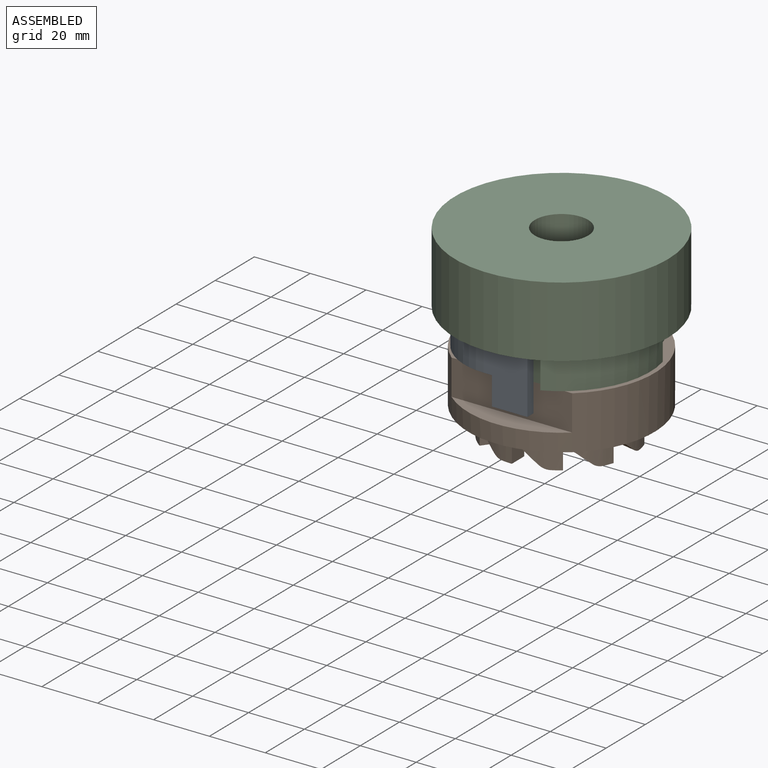
[diagram: assembled view]
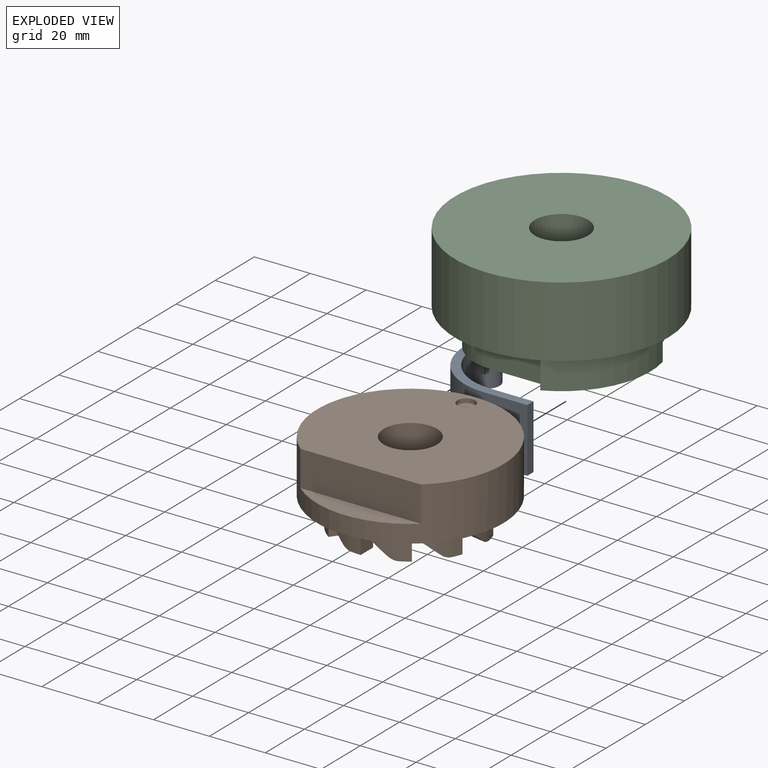
[diagram: exploded view]
GUIDED TOUR — MATED ASSEMBLY (Onshape document 4db34a7f5a0e4e9b8964d2f3, AutoMate assembly 4db34a7f5a0e4e9b8964d2f3_7004a7bdf6988223f767ba07_ab52f2e345b327b0b4ff7aee_default)

This assembly has 3 components, labeled P0..P2 below (a component is one placed occurrence of a part; the same part can appear more than once), held together by 3 mates. A mate is a constraint between two components; its type names the relative motion it leaves free:
  CYLINDRICAL — leaves both rotation about and translation along the listed axis free,
  PARALLEL — keeps the two listed directions parallel.
Axis/direction vectors are unit vectors and 'through' points are millimeter coordinates, both in the assembly's world frame.

MATES
  1. CYLINDRICAL "Cylindrical 1": P0 <-> P2, axis (0.000, 0.000, 1.000) through (-26.92, 0.00, 12.70) mm
  2. PARALLEL "Parallel 1": P1 <-> P2, direction (0.000, -1.000, 0.000) through (21.59, -25.40, 0.00) mm
  3. CYLINDRICAL "Cylindrical 2": P1 <-> P2, axis (0.000, 0.000, 1.000) through (0.00, 0.00, 0.00) mm

ASSEMBLY ORDER
  1. P2 — the base component [order heuristic]
  2. P0 — core [order heuristic]
  3. P1 [order verified]
Order-tag legend:
  [order verified] — this step's position reverses a verified removal order: the component was checked to insert without passing through the ones already placed.
  [order heuristic] — the first 2 components form the assembly's core: parts whose collision-free extraction could not be verified, listed in mate-graph order.

Of the 3 components, 1 carries the full construction recipe — the FeatureScript program that regenerates the part's solid from scratch; the rest are supplied as boundary geometry only.
Each toured component is shown spotlighted twice — in the assembled view, then in the exploded view, where a leader line traces a displaced component back to its assembled socket (saturated green if recipe-attached, orange if geometry-only; every other component desaturated gray) — followed by its recipe or geometry summary and the mates that hold it.
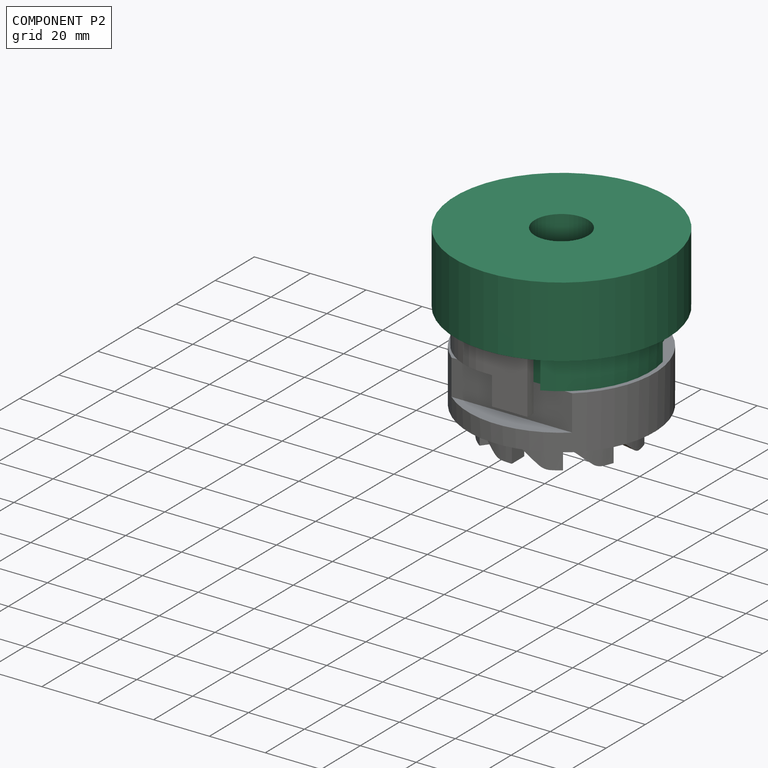
[diagram: component P2 — assembled]
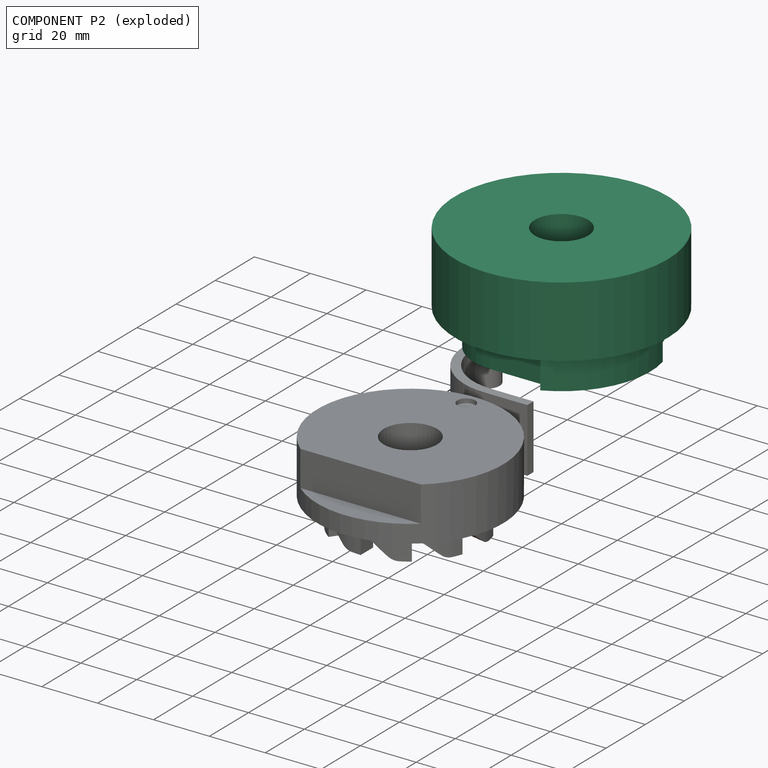
[diagram: component P2 — exploded]
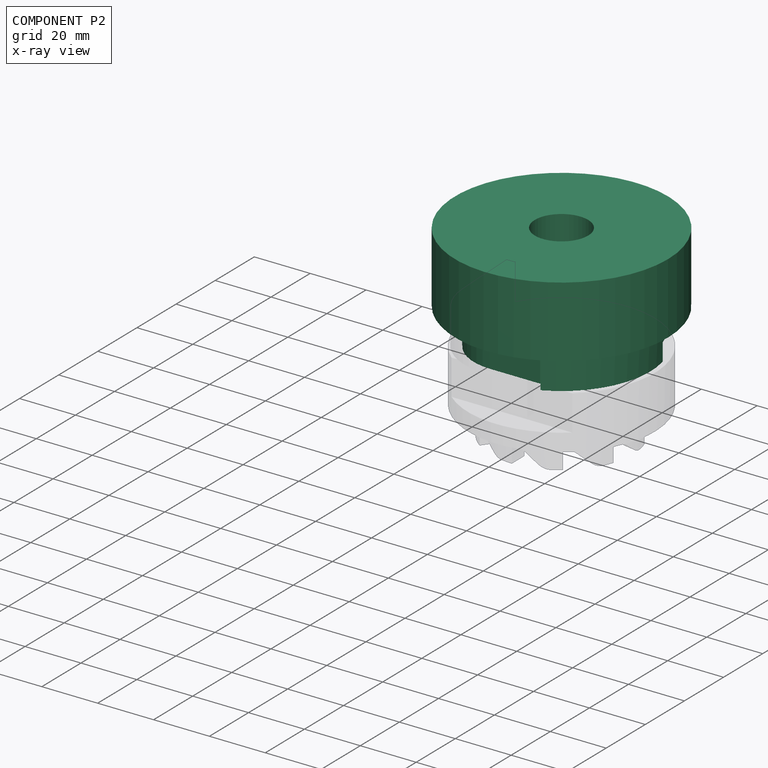
[diagram: component P2 — x-ray view]
COMPONENT P2 — recipe-attached (CADFS 00836405, mesh-verified: the recipe's output STEP matches this component's geometry to below the mesh-comparison resolution (tessellation chordal tolerance ~0.171 mm)).
Held by: CYLINDRICAL mate "Cylindrical 1" to P0; PARALLEL mate "Parallel 1" to P1; CYLINDRICAL mate "Cylindrical 2" to P1.
Construction recipe (FeatureScript — the CAD program that rebuilds this solid; sketch coordinates are in the units given by the * unit suffixes, e.g. mm):

FeatureScript 1511;
import(path : "onshape/std/geometry.fs", version : "1511.0");
import(path : "onshape/std/common.fs", version : "1511.0");
const mm = millimeter;
const VERTEX = EntityType.VERTEX;
const EDGE = EntityType.EDGE;
const FACE = EntityType.FACE;
const BODY = EntityType.BODY;
function v(x, y){return vector(x, y);}
function OD(order){return orderDisambiguation(order);}
function OSD(set){return originalSetDisambiguation(set);}
function TD(topology){return topologyDisambiguation(topology);}
function TDD(query){return trueDependencyDisambiguation(query);}
function sQuery(a, b, c) {return sketchEntityQuery(a, b, c);}

annotation { "Feature Type Name" : "Feature", "Feature Type Description" : "" }
export const myFeature = defineFeature(function(context is Context, id is Id, definition is map)
    precondition{}
    {
        {
            var Q0;
            Q0=qCreatedBy(makeId("Front.planeOp"),FACE);
            var sketch = newSketch(context, id + "F0", { "sketchPlane" : qUnion([Q0])});
            skLineSegment(sketch, "E0", {"start": v(31.75, 0) * mm, "end": v(31.75, 12.7) * mm});
            skLineSegment(sketch, "E1", {"start": v(31.75, 12.7) * mm, "end": v(38.1, 12.7) * mm});
            skLineSegment(sketch, "E2", {"start": v(38.1, 12.7) * mm, "end": v(38.1, 38.1) * mm});
            skLineSegment(sketch, "E3", {"start": v(38.1, 38.1) * mm, "end": v(0, 38.1) * mm});
            skLineSegment(sketch, "E4", {"start": v(0, 38.1) * mm, "end": v(0, 0) * mm});
            skLineSegment(sketch, "E5", {"start": v(0, 0) * mm, "end": v(31.75, 0) * mm});
            skSolve(sketch);
        }
        {
            var Q0;
            Q0=makeQuery(id+"F0.imprint","IMPRINT",FACE,{"disambiguationData":[TD([[makeQuery(id+"F0.imprint","IMPRINT",EDGE,{"derivedFrom":sQuery(id+"F0.wireOp",EDGE,"E0")}),1.0]])]});
            var Q1;
            Q1=sQuery(id+"F0.wireOp",EDGE,"E4");
            revolve(context, id + "F1", {"surfaceOperationType" : NewSurfaceOperationType.NEW, "entities" : qUnion([Q0]), "axis" : qUnion([Q1]), "revolveType" : RevolveType.FULL});
        }
        {
            var Q0;
            Q0=makeQuery(id+"F1.opRevolve","SWEPT_FACE",FACE,{"disambiguationData":[OSD([sQuery(id+"F0.wireOp",EDGE,"E5")])]});
            var sketch = newSketch(context, id + "F2", { "sketchPlane" : qUnion([Q0])});
            skLineSegment(sketch, "E6", {"start": v(12.76, 29.07) * mm, "end": v(11.48, 25.4) * mm});
            skLineSegment(sketch, "E7", {"start": v(11.48, 25.4) * mm, "end": v(-7.87, 25.4) * mm});
            skArc(sketch, "E8", {"start": v(-7.87, 25.4) * mm, "mid": v(-21.34, 19.82) * mm, "end": v(-26.92, 6.35) * mm});
            skLineSegment(sketch, "E9", {"start": v(-26.92, 6.35) * mm, "end": v(-7.87, 6.35) * mm, "construction": true});
            skLineSegment(sketch, "E10", {"start": v(-48.72, -19.05) * mm, "end": v(-32.54, 29.23) * mm});
            skLineSegment(sketch, "E11", {"start": v(-32.54, 29.23) * mm, "end": v(20.22, 33.7) * mm});
            skLineSegment(sketch, "E12", {"start": v(20.22, 33.7) * mm, "end": v(12.76, 29.07) * mm});
            skLineSegment(sketch, "E13", {"start": v(-26.92, 6.35) * mm, "end": v(-26.92, 5.08) * mm});
            skLineSegment(sketch, "E14", {"start": v(-26.92, -19.05) * mm, "end": v(-48.72, -19.05) * mm});
            skArc(sketch, "E15", {"start": v(-26.92, -5.08) * mm, "mid": v(-21.84, 0) * mm, "end": v(-26.92, 5.08) * mm});
            skLineSegment(sketch, "E16.trimOffspring", {"start": v(-26.92, -5.08) * mm, "end": v(-26.92, -19.05) * mm});
            skSolve(sketch);
        }
        {
            var Q0;
            Q0 = qSketchRegion(id + "F2", true);
            extrude(context, id + "F3", {"entities" : qUnion([Q0]), "operationType" : NewBodyOperationType.REMOVE, "oppositeDirection" : true, "depth" : 12.7 * mm, "offsetDistance" : 25.4 * mm});
        }
        {
            var Q0;
            Q0=makeQuery(id+"F1.opRevolve","SWEPT_FACE",FACE,{"disambiguationData":[OSD([sQuery(id+"F0.wireOp",EDGE,"E5")])]});
            var sketch = newSketch(context, id + "F4", { "sketchPlane" : qUnion([Q0])});
            skArc(sketch, "E17", {"start": v(-8.69, -23.87) * mm, "mid": v(10.73, -23.02) * mm, "end": v(23.87, -8.69) * mm});
            skLineSegment(sketch, "E18", {"start": v(-8.69, -23.87) * mm, "end": v(0, 0) * mm, "construction": true});
            skLineSegment(sketch, "E19", {"start": v(0, 0) * mm, "end": v(23.87, -8.69) * mm, "construction": true});
            skArc(sketch, "E20", {"start": v(23.87, -8.69) * mm, "mid": v(25.5, -6.9) * mm, "end": v(27.94, -6.79) * mm});
            skArc(sketch, "E21", {"start": v(-8.69, -23.87) * mm, "mid": v(-11.12, -23.97) * mm, "end": v(-12.76, -25.77) * mm});
            skLineSegment(sketch, "E22", {"start": v(27.94, -6.79) * mm, "end": v(61.93, -19.16) * mm});
            skLineSegment(sketch, "E23", {"start": v(61.93, -19.16) * mm, "end": v(-28.88, -70.06) * mm});
            skLineSegment(sketch, "E24", {"start": v(-28.88, -70.06) * mm, "end": v(-12.76, -25.77) * mm});
            skSolve(sketch);
        }
        {
            var Q0;
            Q0 = qSketchRegion(id + "F4", true);
            extrude(context, id + "F5", {"entities" : qUnion([Q0]), "operationType" : NewBodyOperationType.REMOVE, "oppositeDirection" : true, "depth" : 6.35 * mm, "offsetDistance" : 25.4 * mm});
        }
        {
            var Q0;
            Q0=makeQuery(id+"F1.opRevolve","SWEPT_FACE",FACE,{"disambiguationData":[OSD([sQuery(id+"F0.wireOp",EDGE,"E5")])]});
            var sketch = newSketch(context, id + "F6", { "sketchPlane" : qUnion([Q0])});
            skPoint(sketch, "E25", {"position": v(0, 0) * mm});
            skSolve(sketch);
        }
        {
            var Q0;
            Q0=sQuery(id+"F6.wireOp",VERTEX,"E25");
            var Q1;
            Q1=makeQuery(id+"F1.opRevolve","SWEPT_BODY",BODY,{"disambiguationData":[OSD([sQuery(id+"F0.wireOp",EDGE,"E0"),sQuery(id+"F0.wireOp",EDGE,"E1"),sQuery(id+"F0.wireOp",EDGE,"E2"),sQuery(id+"F0.wireOp",EDGE,"E3"),sQuery(id+"F0.wireOp",EDGE,"E4"),sQuery(id+"F0.wireOp",EDGE,"E5")])]});
            hole(context, id + "F7", {"style" : HoleStyle.SIMPLE, "endStyle" : HoleEndStyle.THROUGH, "holeDiameter" : 19.05 * mm, "majorDiameter" : 6.35 * mm, "isTappedThrough" : true, "tappedDepth" : 50.8 * mm, "tapClearance" : 3, "locations" : qUnion([Q0]), "scope" : qUnion([Q1])});
        }
        {
            var Q0;
            Q0=makeQuery(id+"F3.boolean.opBoolean","MERGE",FACE,{"derivedFrom":[makeQuery(id+"F1.opRevolve","SWEPT_FACE",FACE,{"disambiguationData":[OSD([sQuery(id+"F0.wireOp",EDGE,"E1")])]}),makeQuery(id+"F3.opExtrude","CAP_FACE",FACE,{"disambiguationData":[OSD([sQuery(id+"F2.wireOp",EDGE,"E6"),sQuery(id+"F2.wireOp",EDGE,"E7"),sQuery(id+"F2.wireOp",EDGE,"E8"),sQuery(id+"F2.wireOp",EDGE,"E10"),sQuery(id+"F2.wireOp",EDGE,"E11"),sQuery(id+"F2.wireOp",EDGE,"E12"),sQuery(id+"F2.wireOp",EDGE,"E13"),sQuery(id+"F2.wireOp",EDGE,"E14"),sQuery(id+"F2.wireOp",EDGE,"E15"),sQuery(id+"F2.wireOp",EDGE,"E16.trimOffspring")])],"isStart":false})]});
            var Q1;
            Q1=makeQuery(id+"F3.boolean.opBoolean","MERGE",FACE,{"derivedFrom":[makeQuery(id+"F1.opRevolve","SWEPT_FACE",FACE,{"disambiguationData":[OSD([sQuery(id+"F0.wireOp",EDGE,"E1")])]}),makeQuery(id+"F3.opExtrude","CAP_FACE",FACE,{"disambiguationData":[OSD([sQuery(id+"F2.wireOp",EDGE,"E6"),sQuery(id+"F2.wireOp",EDGE,"E7"),sQuery(id+"F2.wireOp",EDGE,"E8"),sQuery(id+"F2.wireOp",EDGE,"E10"),sQuery(id+"F2.wireOp",EDGE,"E11"),sQuery(id+"F2.wireOp",EDGE,"E12"),sQuery(id+"F2.wireOp",EDGE,"E13"),sQuery(id+"F2.wireOp",EDGE,"E14"),sQuery(id+"F2.wireOp",EDGE,"E15"),sQuery(id+"F2.wireOp",EDGE,"E16.trimOffspring")])],"isStart":false})]});
            var sketch = newSketch(context, id + "F8", { "sketchPlane" : qUnion([Q0, Q1])});
            skCircle(sketch, "E26", {"center": v(-26.92, 0) * mm, "radius": 1.59 * mm});
            skSolve(sketch);
        }
        {
            var Q0;
            Q0 = qSketchRegion(id + "F8", true);
            extrude(context, id + "F9", {"entities" : qUnion([Q0]), "operationType" : NewBodyOperationType.REMOVE, "oppositeDirection" : true, "depth" : 3.17 * mm, "offsetDistance" : 25.4 * mm});
        }
    });
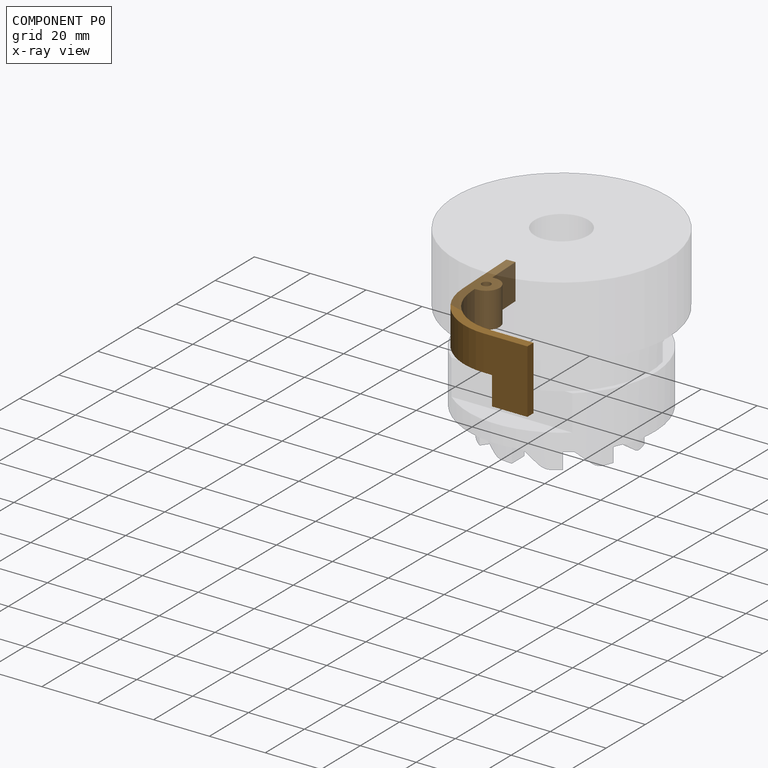
[diagram: component P0 — x-ray view]
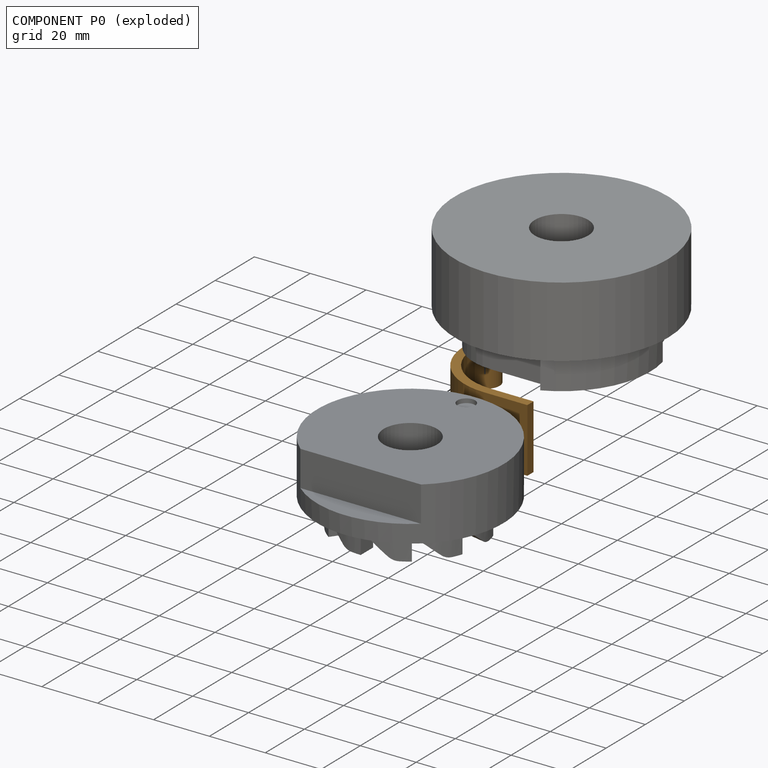
[diagram: component P0 — exploded]
COMPONENT P0 — geometry summary (no construction recipe available for this part):
  bounding box: 46.0 x 39.6 x 22.9 mm
  B-rep topology: 1 solid, 17 faces, 90 edges
  volume: 3788 mm^3 (9% of its bounding box)
Held by: CYLINDRICAL mate "Cylindrical 1" to P2.
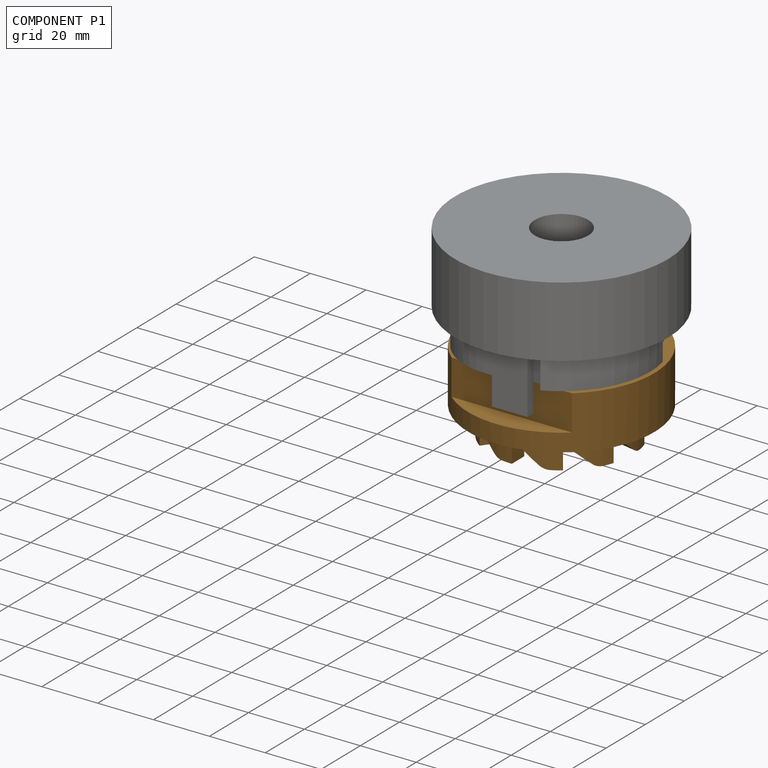
[diagram: component P1 — assembled]
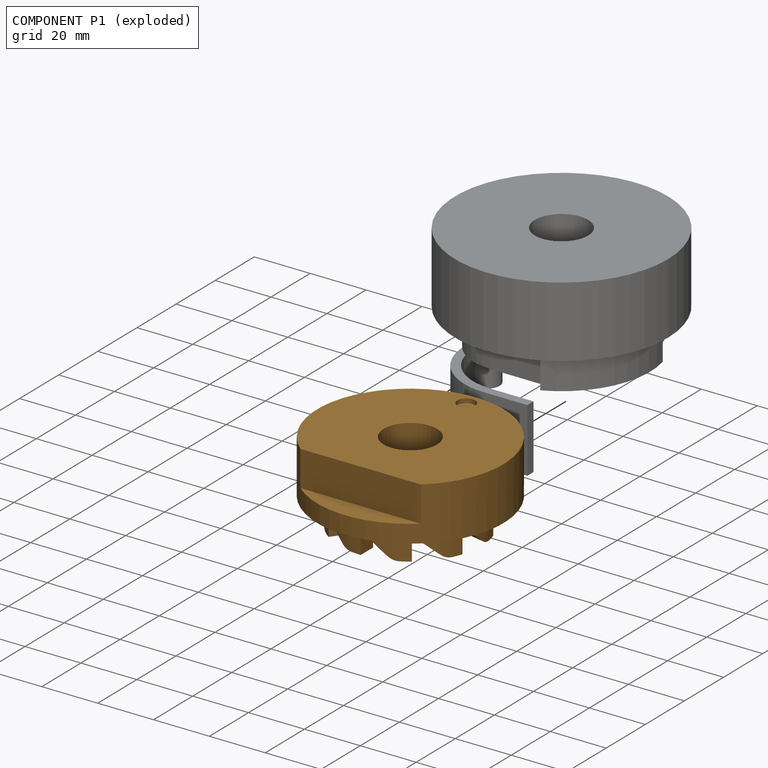
[diagram: component P1 — exploded]
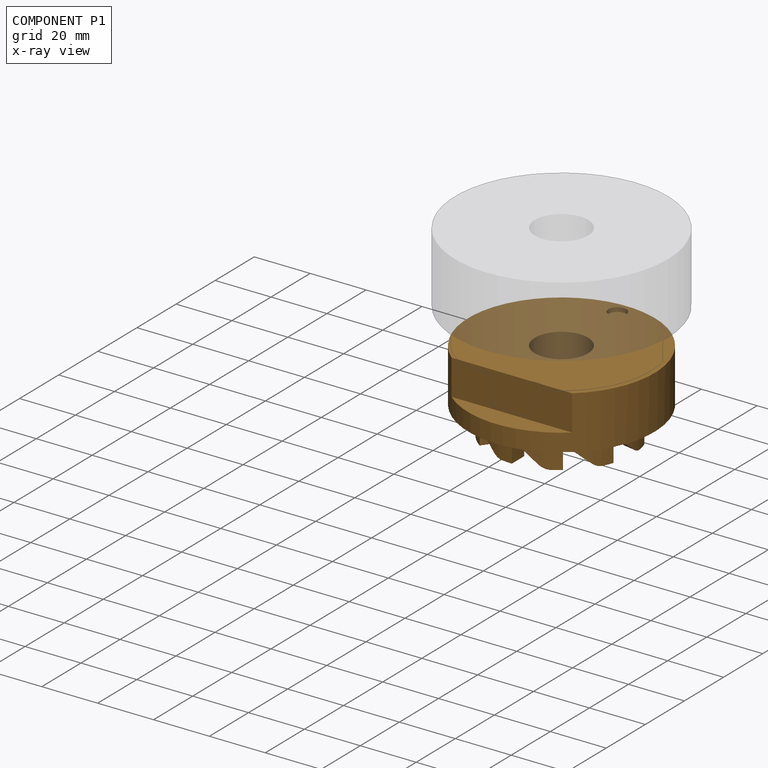
[diagram: component P1 — x-ray view]
COMPONENT P1 — geometry summary (no construction recipe available for this part):
  bounding box: 66.7 x 66.7 x 28.6 mm
  B-rep topology: 1 solid, 71 faces, 402 edges
  volume: 64012 mm^3 (50% of its bounding box)
Held by: PARALLEL mate "Parallel 1" to P2; CYLINDRICAL mate "Cylindrical 2" to P2.
PROVENANCE & LICENSES
Assembly (occurrences, transforms, mates, per-part STEP geometry): AutoMate dataset, Zenodo record 7776208, CC0.
Construction recipes: CADFS (HuggingFace VladPyatov/CADFS, CC-BY-4.0, layered over the ABC dataset), FeatureScript reconstruction programs keyed by ABC model id.
Join: ABC meta listings map ABC model id -> Onshape documentId; within a shared document, parts are matched by geometric signature (bounding-box dims + volume at 0.1% relative tolerance, exact B-rep face/solid counts).
Verification: 1 of this assembly's 3 components carries a recipe attachment, and every attachment is mesh-verified: the CADFS STEP and the AutoMate member STEP were compared as meshes in their shared local frame (symmetric sampled-point-to-mesh distance); worst across the 1 attachment: below the mesh-comparison resolution (tessellation chordal tolerance ~0.171 mm) on a 114 mm part.
Renders: orthographic iso camera (az 35 / el 25); the floor grid conveys scale (grid pitch printed in each image; no ruler). In the exploded view each component is displaced by its stored offset vector: the offsets alone carry the explosion direction (mate normal/axis signs are not orientation cues and do not encode it), and separation distances are assigned per mate-chain, not proportionally to assembly-order depth.
